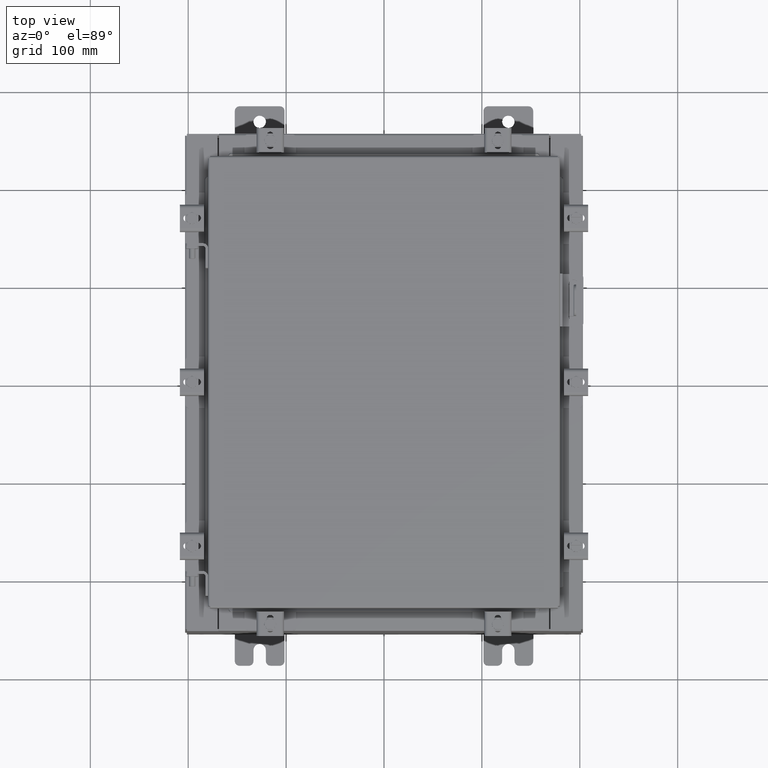
[diagram: clean part render]
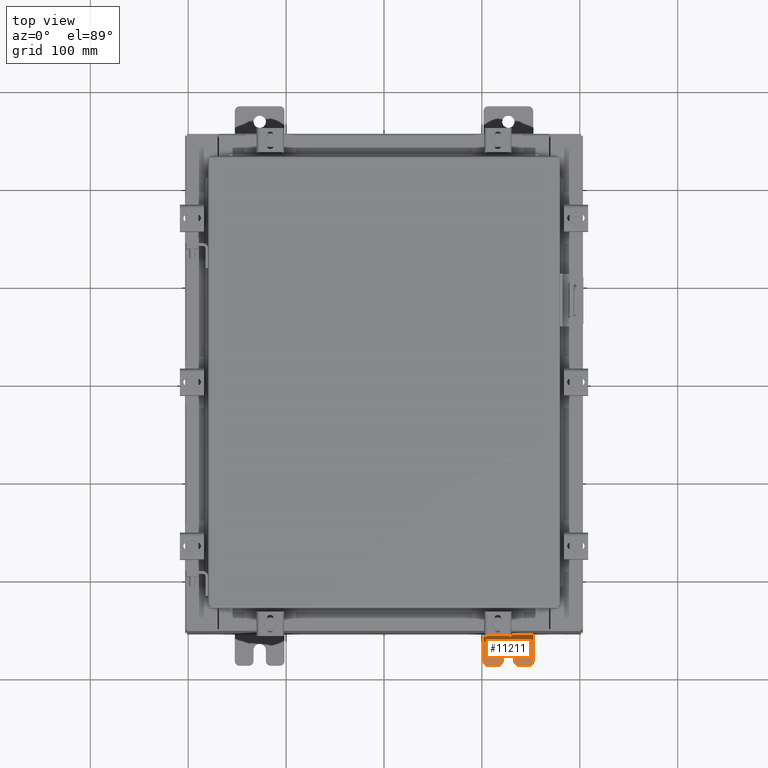
[diagram: same view with one face highlighted and labeled with its STEP entity id]
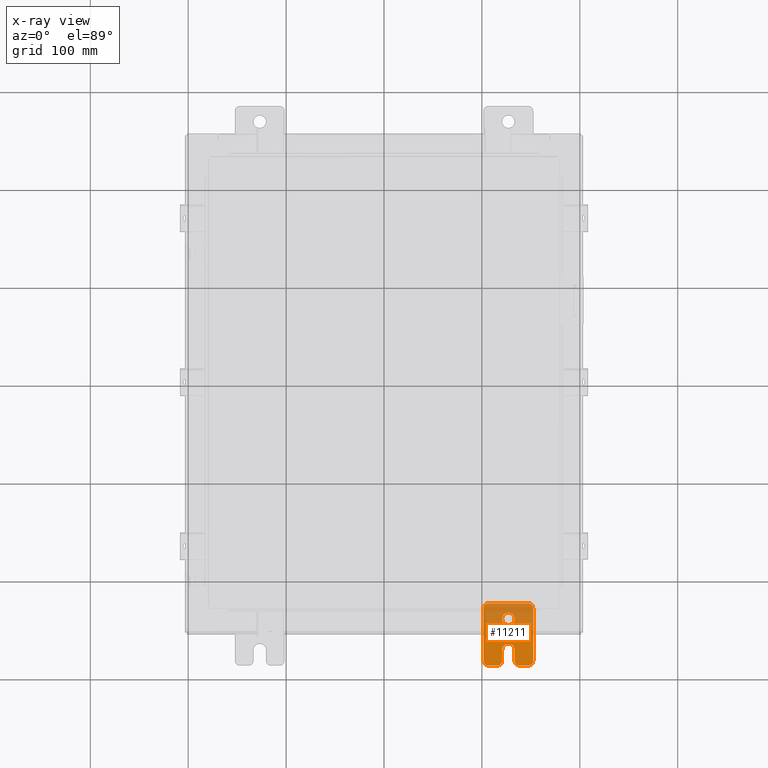
[diagram: x-ray of the same camera — body ghosted, the highlighted face saturated]
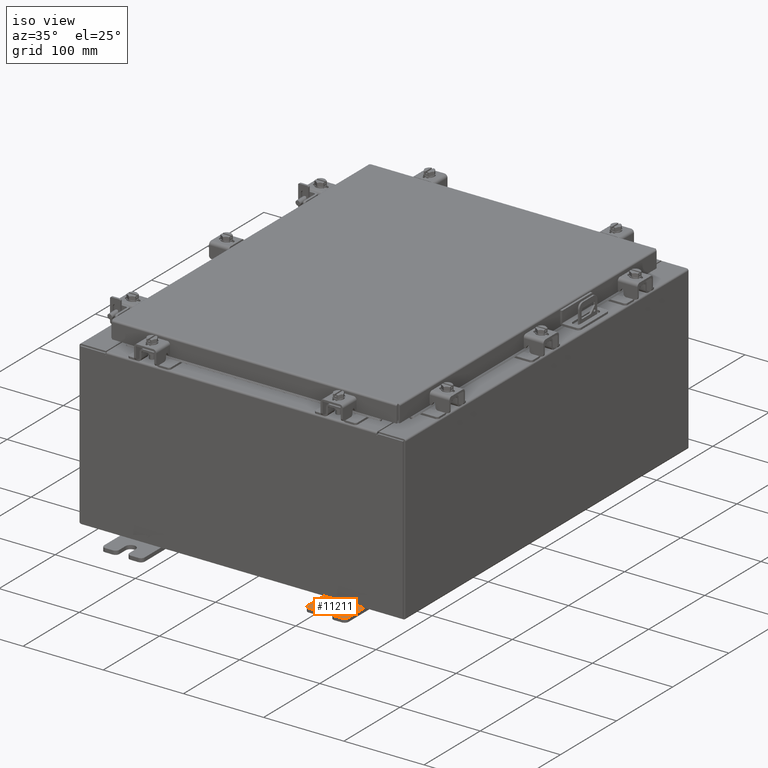
[diagram: same view with one face highlighted and labeled with its STEP entity id]
A machine part, top view. The second image highlights one B-rep face of the part: STEP entity #11211.
The next image is the same camera in x-ray: the body ghosted, the highlighted face saturated — about 53% of this face is hidden behind the body in this view.
A second angle (iso view) of the same face is appended — the face is thin or edge-on in the first view.
In plain terms, the highlighted planar face has unit normal (0, 0, 1).
Its self-contained STEP definition (entity closure, byte-faithful):
#213 = ORIENTED_EDGE ( 'NONE', *, *, #19110, .T. ) ;
#311 = EDGE_CURVE ( 'NONE', #19665, #5490, #9090, .T. ) ;
#436 = VECTOR ( 'NONE', #13273, 39.37007874015748100 ) ;
#726 = CARTESIAN_POINT ( 'NONE',  ( 4.780733988912460100E-016, -0.6249999999999993300, -0.2499999999999998600 ) ) ;
#802 = DIRECTION ( 'NONE',  ( 1.000000000000000000, -0.0000000000000000000, -5.163192708025532000E-017 ) ) ;
#976 = DIRECTION ( 'NONE',  ( -5.163192708025533800E-017, 0.0000000000000000000, -1.000000000000000000 ) ) ;
#995 = CIRCLE ( 'NONE', #21562, 0.2499999999999999200 ) ;
#1059 = VERTEX_POINT ( 'NONE', #22061 ) ;
#1089 = EDGE_CURVE ( 'NONE', #10271, #19312, #1216, .T. ) ;
#1102 = CARTESIAN_POINT ( 'NONE',  ( 0.0000000000000000000, 1.249999999999994200, -1.000000000000010400 ) ) ;
#1161 = AXIS2_PLACEMENT_3D ( 'NONE', #21245, #9514, #9908 ) ;
#1216 = CIRCLE ( 'NONE', #18131, 0.1900000000000011100 ) ;
#1641 = CARTESIAN_POINT ( 'NONE',  ( 1.928684683526964400E-016, -1.060000000000003400, -0.2499999999999994400 ) ) ;
#1675 = AXIS2_PLACEMENT_3D ( 'NONE', #15687, #5277, #17458 ) ;
#1823 = DIRECTION ( 'NONE',  ( 6.556435184794182400E-016, 1.000000000000000000, 0.0000000000000000000 ) ) ;
#2424 = ORIENTED_EDGE ( 'NONE', *, *, #1089, .T. ) ;
#2449 = ORIENTED_EDGE ( 'NONE', *, *, #19430, .T. ) ;
#2473 = CARTESIAN_POINT ( 'NONE',  ( 0.0000000000000000000, -1.060000000000004100, -0.8100000000000050500 ) ) ;
#3077 = DIRECTION ( 'NONE',  ( 0.0000000000000000000, -1.639108796198553600E-015, -1.000000000000000000 ) ) ;
#3426 = AXIS2_PLACEMENT_3D ( 'NONE', #6874, #19079, #8562 ) ;
#3639 = FACE_BOUND ( 'NONE', #20435, .T. ) ;
#3741 = ORIENTED_EDGE ( 'NONE', *, *, #311, .T. ) ;
#4156 = CARTESIAN_POINT ( 'NONE',  ( 0.0000000000000000000, -1.060000000000001200, 0.9999999999999988900 ) ) ;
#4526 = LINE ( 'NONE', #19964, #13231 ) ;
#4899 = DIRECTION ( 'NONE',  ( 1.000000000000000000, 0.0000000000000000000, -0.0000000000000000000 ) ) ;
#5079 = CARTESIAN_POINT ( 'NONE',  ( 0.0000000000000000000, 1.059999999999996500, 0.9999999999999953400 ) ) ;
#5277 = DIRECTION ( 'NONE',  ( -1.000000000000000000, 6.523827964459549700E-016, 5.163192708025532000E-017 ) ) ;
#5490 = VERTEX_POINT ( 'NONE', #18187 ) ;
#5513 = DIRECTION ( 'NONE',  ( 1.000000000000000000, 0.0000000000000000000, -0.0000000000000000000 ) ) ;
#5552 = LINE ( 'NONE', #11478, #18932 ) ;
#5782 = CARTESIAN_POINT ( 'NONE',  ( 0.0000000000000000000, 1.059999999999996300, 0.8099999999999938400 ) ) ;
#5983 = LINE ( 'NONE', #7485, #14719 ) ;
#6429 = ORIENTED_EDGE ( 'NONE', *, *, #21015, .T. ) ;
#6475 = LINE ( 'NONE', #19279, #15181 ) ;
#6542 = EDGE_CURVE ( 'NONE', #1059, #10271, #6475, .T. ) ;
#6755 = ORIENTED_EDGE ( 'NONE', *, *, #13169, .T. ) ;
#6781 = VERTEX_POINT ( 'NONE', #9727 ) ;
#6874 = CARTESIAN_POINT ( 'NONE',  ( 0.0000000000000000000, -1.060000000000003400, -0.4400000000000005000 ) ) ;
#6922 = EDGE_CURVE ( 'NONE', #14163, #1059, #18472, .T. ) ;
#7287 = EDGE_CURVE ( 'NONE', #10750, #16563, #11892, .T. ) ;
#7485 = CARTESIAN_POINT ( 'NONE',  ( 4.780733988912460100E-016, -0.6249999999999993300, -0.2499999999999993900 ) ) ;
#7510 = DIRECTION ( 'NONE',  ( 0.0000000000000000000, 0.0000000000000000000, -1.000000000000000000 ) ) ;
#7557 = AXIS2_PLACEMENT_3D ( 'NONE', #15909, #5513, #17700 ) ;
#7726 = DIRECTION ( 'NONE',  ( 1.000000000000000000, 0.0000000000000000000, -0.0000000000000000000 ) ) ;
#8328 = CARTESIAN_POINT ( 'NONE',  ( 0.0000000000000000000, 1.249999999999997300, 0.8099999999999935000 ) ) ;
#8562 = DIRECTION ( 'NONE',  ( 0.0000000000000000000, 0.0000000000000000000, -1.000000000000000000 ) ) ;
#8745 = CIRCLE ( 'NONE', #1675, 0.2499999999999999200 ) ;
#8819 = EDGE_CURVE ( 'NONE', #18489, #9724, #13819, .T. ) ;
#9026 = ORIENTED_EDGE ( 'NONE', *, *, #12593, .T. ) ;
#9090 = CIRCLE ( 'NONE', #1161, 0.1900000000000011400 ) ;
#9514 = DIRECTION ( 'NONE',  ( 1.000000000000000000, 0.0000000000000000000, -0.0000000000000000000 ) ) ;
#9653 = DIRECTION ( 'NONE',  ( 1.000000000000000000, 0.0000000000000000000, -0.0000000000000000000 ) ) ;
#9694 = DIRECTION ( 'NONE',  ( 0.0000000000000000000, -1.000000000000000000, 1.639108796198558100E-015 ) ) ;
#9724 = VERTEX_POINT ( 'NONE', #8328 ) ;
#9727 = CARTESIAN_POINT ( 'NONE',  ( 4.168508244714285900E-016, 0.6249999999999992200, 0.2499999999999999200 ) ) ;
#9867 = VECTOR ( 'NONE', #1823, 39.37007874015748100 ) ;
#9908 = DIRECTION ( 'NONE',  ( 0.0000000000000000000, 0.0000000000000000000, -1.000000000000000000 ) ) ;
#10202 = EDGE_LOOP ( 'NONE', ( #213, #13531, #6429, #3741, #2449, #15989, #15714, #18331, #20156, #2424, #13192, #9026, #10342, #6755 ) ) ;
#10271 = VERTEX_POINT ( 'NONE', #14969 ) ;
#10342 = ORIENTED_EDGE ( 'NONE', *, *, #8819, .T. ) ;
#10476 = VERTEX_POINT ( 'NONE', #17261 ) ;
#10750 = VERTEX_POINT ( 'NONE', #4156 ) ;
#10901 = LINE ( 'NONE', #17106, #13956 ) ;
#11116 = CIRCLE ( 'NONE', #7557, 0.1900000000000011100 ) ;
#11211 = ADVANCED_FACE ( 'NONE', ( #3639, #12882 ), #15309, .T. ) ;
#11216 = CARTESIAN_POINT ( 'NONE',  ( 4.039428427013647300E-016, 0.6249999999999992200, -9.783840404509077400E-018 ) ) ;
#11401 = DIRECTION ( 'NONE',  ( 1.000000000000000000, -0.0000000000000000000, -5.163192708025532000E-017 ) ) ;
#11478 = CARTESIAN_POINT ( 'NONE',  ( 0.0000000000000000000, 1.249999999999997600, 0.9999999999999951200 ) ) ;
#11711 = CARTESIAN_POINT ( 'NONE',  ( 3.910348609313009100E-016, 0.6249999999999992200, -0.2499999999999999200 ) ) ;
#11801 = ORIENTED_EDGE ( 'NONE', *, *, #20021, .F. ) ;
#11892 = CIRCLE ( 'NONE', #13486, 0.1900000000000011100 ) ;
#12096 = EDGE_CURVE ( 'NONE', #20697, #14163, #5983, .T. ) ;
#12317 = CIRCLE ( 'NONE', #15976, 0.2499999999999999200 ) ;
#12593 = EDGE_CURVE ( 'NONE', #13259, #18489, #11116, .T. ) ;
#12837 = DIRECTION ( 'NONE',  ( -6.556435184794182400E-016, -1.000000000000000000, -1.639108796198545600E-016 ) ) ;
#12882 = FACE_OUTER_BOUND ( 'NONE', #10202, .T. ) ;
#12976 = DIRECTION ( 'NONE',  ( -5.163192708025533800E-017, 0.0000000000000000000, -1.000000000000000000 ) ) ;
#13093 = CARTESIAN_POINT ( 'NONE',  ( 0.0000000000000000000, 1.059999999999993400, -1.000000000000010000 ) ) ;
#13133 = AXIS2_PLACEMENT_3D ( 'NONE', #5782, #17988, #7510 ) ;
#13169 = EDGE_CURVE ( 'NONE', #9724, #21067, #21691, .T. ) ;
#13192 = ORIENTED_EDGE ( 'NONE', *, *, #14433, .T. ) ;
#13231 = VECTOR ( 'NONE', #21669, 39.37007874015748100 ) ;
#13259 = VERTEX_POINT ( 'NONE', #13093 ) ;
#13273 = DIRECTION ( 'NONE',  ( 0.0000000000000000000, 1.639108796198553600E-015, 1.000000000000000000 ) ) ;
#13486 = AXIS2_PLACEMENT_3D ( 'NONE', #18225, #7726, #19949 ) ;
#13531 = ORIENTED_EDGE ( 'NONE', *, *, #7287, .T. ) ;
#13568 = CARTESIAN_POINT ( 'NONE',  ( 0.0000000000000000000, 0.0000000000000000000, 0.0000000000000000000 ) ) ;
#13710 = CARTESIAN_POINT ( 'NONE',  ( 0.0000000000000000000, -1.060000000000004500, -1.000000000000006400 ) ) ;
#13819 = LINE ( 'NONE', #1102, #436 ) ;
#13832 = EDGE_CURVE ( 'NONE', #6781, #22222, #995, .T. ) ;
#13956 = VECTOR ( 'NONE', #3077, 39.37007874015748100 ) ;
#14012 = LINE ( 'NONE', #17438, #9867 ) ;
#14106 = DIRECTION ( 'NONE',  ( 0.0000000000000000000, -1.639108796198553600E-015, -1.000000000000000000 ) ) ;
#14163 = VERTEX_POINT ( 'NONE', #1641 ) ;
#14433 = EDGE_CURVE ( 'NONE', #19312, #13259, #4526, .T. ) ;
#14663 = DIRECTION ( 'NONE',  ( 0.0000000000000000000, 0.0000000000000000000, -1.000000000000000000 ) ) ;
#14719 = VECTOR ( 'NONE', #12837, 39.37007874015748100 ) ;
#14969 = CARTESIAN_POINT ( 'NONE',  ( 0.0000000000000000000, -1.250000000000005300, -0.8100000000000047200 ) ) ;
#15181 = VECTOR ( 'NONE', #14106, 39.37007874015748100 ) ;
#15309 = PLANE ( 'NONE',  #20246 ) ;
#15687 = CARTESIAN_POINT ( 'NONE',  ( 4.780733988912460100E-016, -0.6249999999999993300, 5.858939755051854500E-017 ) ) ;
#15714 = ORIENTED_EDGE ( 'NONE', *, *, #12096, .T. ) ;
#15909 = CARTESIAN_POINT ( 'NONE',  ( 0.0000000000000000000, 1.059999999999993600, -0.8100000000000089400 ) ) ;
#15976 = AXIS2_PLACEMENT_3D ( 'NONE', #21803, #11401, #976 ) ;
#15989 = ORIENTED_EDGE ( 'NONE', *, *, #16784, .T. ) ;
#16563 = VERTEX_POINT ( 'NONE', #22093 ) ;
#16784 = EDGE_CURVE ( 'NONE', #10476, #20697, #8745, .T. ) ;
#17072 = DIRECTION ( 'NONE',  ( -0.0000000000000000000, 0.0000000000000000000, -1.000000000000000000 ) ) ;
#17106 = CARTESIAN_POINT ( 'NONE',  ( 0.0000000000000000000, -1.250000000000002200, 0.9999999999999992200 ) ) ;
#17261 = CARTESIAN_POINT ( 'NONE',  ( 0.0000000000000000000, -0.6249999999999992200, 0.2500000000000005000 ) ) ;
#17438 = CARTESIAN_POINT ( 'NONE',  ( 6.829619984160658000E-017, -1.250000000000003800, 0.2500000000000005000 ) ) ;
#17458 = DIRECTION ( 'NONE',  ( -6.523827964459551700E-016, -1.000000000000000000, 0.0000000000000000000 ) ) ;
#17700 = DIRECTION ( 'NONE',  ( 0.0000000000000000000, 0.0000000000000000000, -1.000000000000000000 ) ) ;
#17988 = DIRECTION ( 'NONE',  ( 1.000000000000000000, 0.0000000000000000000, -0.0000000000000000000 ) ) ;
#18131 = AXIS2_PLACEMENT_3D ( 'NONE', #2473, #9653, #14663 ) ;
#18187 = CARTESIAN_POINT ( 'NONE',  ( 1.928684683526972300E-016, -1.060000000000002100, 0.2500000000000005000 ) ) ;
#18225 = CARTESIAN_POINT ( 'NONE',  ( 0.0000000000000000000, -1.060000000000001600, 0.8099999999999978300 ) ) ;
#18331 = ORIENTED_EDGE ( 'NONE', *, *, #6922, .T. ) ;
#18472 = CIRCLE ( 'NONE', #3426, 0.1900000000000011100 ) ;
#18489 = VERTEX_POINT ( 'NONE', #18556 ) ;
#18556 = CARTESIAN_POINT ( 'NONE',  ( 0.0000000000000000000, 1.249999999999994700, -0.8100000000000092700 ) ) ;
#18932 = VECTOR ( 'NONE', #9694, 39.37007874015748100 ) ;
#19079 = DIRECTION ( 'NONE',  ( 1.000000000000000000, 0.0000000000000000000, -0.0000000000000000000 ) ) ;
#19110 = EDGE_CURVE ( 'NONE', #21067, #10750, #5552, .T. ) ;
#19279 = CARTESIAN_POINT ( 'NONE',  ( 0.0000000000000000000, -1.250000000000002200, 0.9999999999999992200 ) ) ;
#19312 = VERTEX_POINT ( 'NONE', #13710 ) ;
#19430 = EDGE_CURVE ( 'NONE', #5490, #10476, #14012, .T. ) ;
#19665 = VERTEX_POINT ( 'NONE', #21404 ) ;
#19949 = DIRECTION ( 'NONE',  ( 0.0000000000000000000, 0.0000000000000000000, -1.000000000000000000 ) ) ;
#19964 = CARTESIAN_POINT ( 'NONE',  ( 0.0000000000000000000, -1.250000000000005600, -1.000000000000006200 ) ) ;
#20021 = EDGE_CURVE ( 'NONE', #22222, #6781, #12317, .T. ) ;
#20156 = ORIENTED_EDGE ( 'NONE', *, *, #6542, .T. ) ;
#20246 = AXIS2_PLACEMENT_3D ( 'NONE', #13568, #4899, #17072 ) ;
#20435 = EDGE_LOOP ( 'NONE', ( #11801, #21531 ) ) ;
#20697 = VERTEX_POINT ( 'NONE', #726 ) ;
#21015 = EDGE_CURVE ( 'NONE', #16563, #19665, #10901, .T. ) ;
#21067 = VERTEX_POINT ( 'NONE', #5079 ) ;
#21245 = CARTESIAN_POINT ( 'NONE',  ( 0.0000000000000000000, -1.060000000000002100, 0.4400000000000016700 ) ) ;
#21404 = CARTESIAN_POINT ( 'NONE',  ( 0.0000000000000000000, -1.250000000000003100, 0.4400000000000020000 ) ) ;
#21531 = ORIENTED_EDGE ( 'NONE', *, *, #13832, .F. ) ;
#21562 = AXIS2_PLACEMENT_3D ( 'NONE', #11216, #802, #12976 ) ;
#21669 = DIRECTION ( 'NONE',  ( 0.0000000000000000000, 1.000000000000000000, -1.639108796198558100E-015 ) ) ;
#21691 = CIRCLE ( 'NONE', #13133, 0.1900000000000011100 ) ;
#21803 = CARTESIAN_POINT ( 'NONE',  ( 4.039428427013647300E-016, 0.6249999999999992200, -9.783840404509077400E-018 ) ) ;
#22061 = CARTESIAN_POINT ( 'NONE',  ( 0.0000000000000000000, -1.250000000000004700, -0.4400000000000002200 ) ) ;
#22093 = CARTESIAN_POINT ( 'NONE',  ( 0.0000000000000000000, -1.250000000000002400, 0.8099999999999980500 ) ) ;
#22222 = VERTEX_POINT ( 'NONE', #11711 ) ;